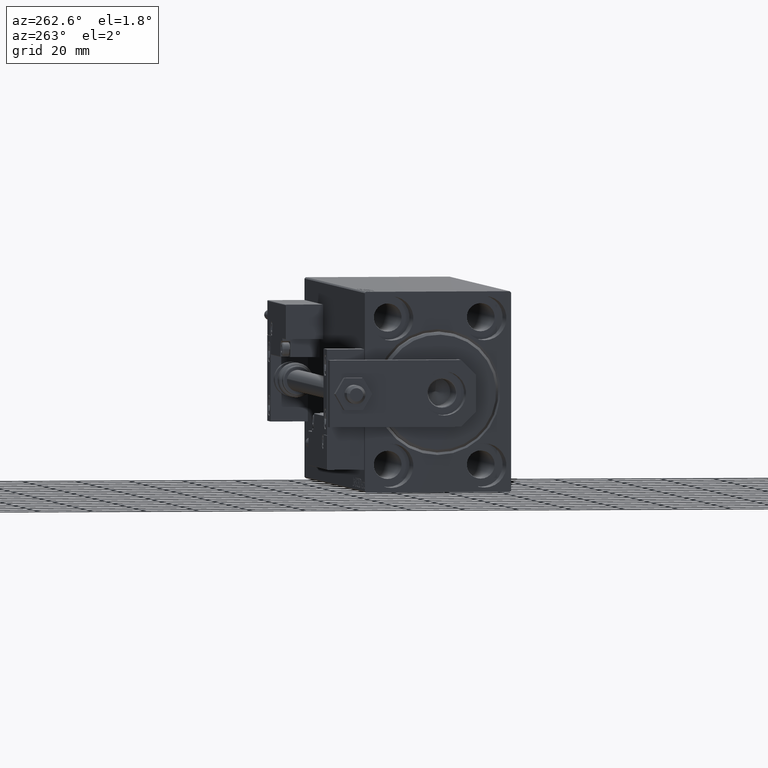
[diagram: clean part render]
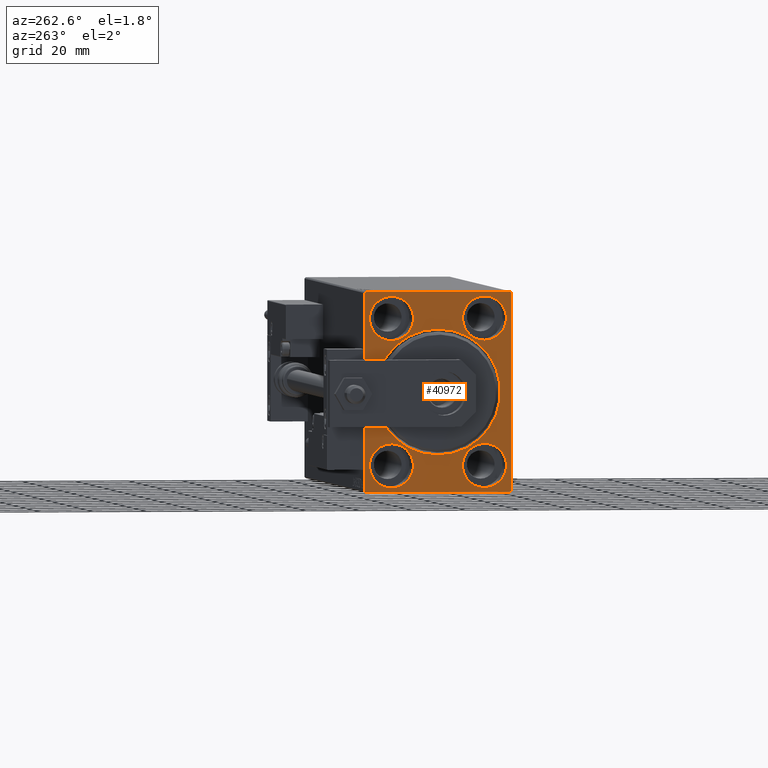
[diagram: same view with one face highlighted and labeled with its STEP entity id]
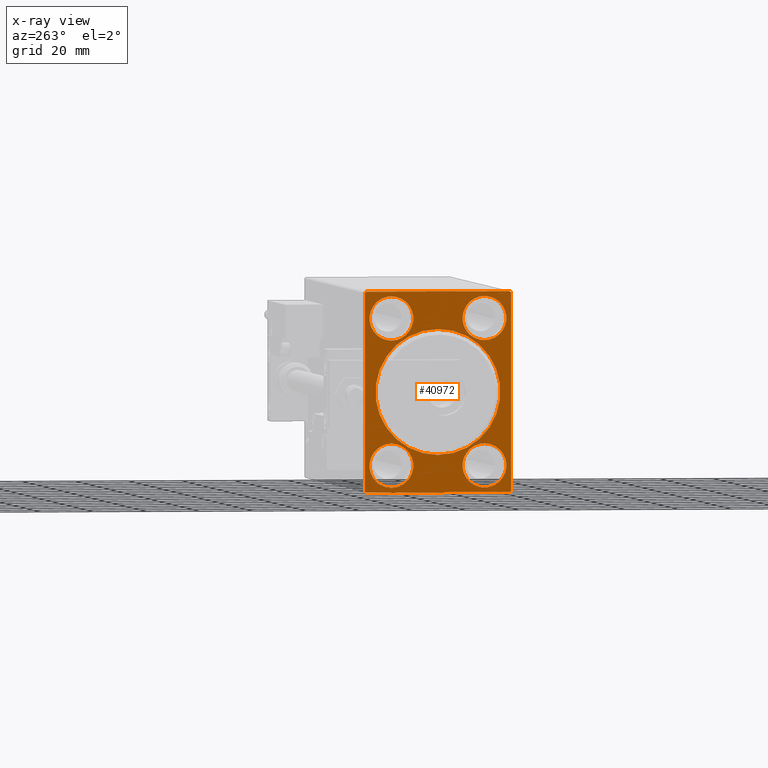
[diagram: x-ray of the same camera — body ghosted, the highlighted face saturated]
A machine part, auxiliary view. The second image highlights one B-rep face of the part: STEP entity #40972.
The next image is the same camera in x-ray: the body ghosted, the highlighted face saturated — about 0% of this face is hidden behind the body in this view.
In plain terms, the highlighted planar face has unit normal (1, 0, 0).
Its self-contained STEP definition (entity closure, byte-faithful):
#494 = DIRECTION ( 'NONE',  ( 0.000000000000000000, 0.000000000000000000, -1.000000000000000000 ) ) ;
#666 = CARTESIAN_POINT ( 'NONE',  ( 0.000000000000000000, -26.99999999999997513, -37.50000000000000000 ) ) ;
#687 = VECTOR ( 'NONE', #46618, 1000.000000000000000 ) ;
#893 = CARTESIAN_POINT ( 'NONE',  ( 0.000000000000000000, 17.50000000000000355, 27.49999999999999645 ) ) ;
#1752 = CARTESIAN_POINT ( 'NONE',  ( 0.000000000000000000, 27.00000000000003197, -37.50000000000000000 ) ) ;
#1796 = ORIENTED_EDGE ( 'NONE', *, *, #7223, .T. ) ;
#2084 = CIRCLE ( 'NONE', #19018, 8.250000000000000000 ) ;
#2103 = EDGE_CURVE ( 'NONE', #23655, #49154, #2084, .T. ) ;
#2503 = CARTESIAN_POINT ( 'NONE',  ( 0.000000000000000000, 17.49999999999999645, -27.50000000000000355 ) ) ;
#3256 = EDGE_LOOP ( 'NONE', ( #25740, #12649 ) ) ;
#3295 = VERTEX_POINT ( 'NONE', #36533 ) ;
#3357 = ORIENTED_EDGE ( 'NONE', *, *, #44906, .F. ) ;
#3539 = CARTESIAN_POINT ( 'NONE',  ( 0.000000000000000000, -17.49999999999999645, 35.74999999999999289 ) ) ;
#3814 = CARTESIAN_POINT ( 'NONE',  ( 0.000000000000000000, 26.99999999999999645, 37.50000000000000711 ) ) ;
#4113 = DIRECTION ( 'NONE',  ( -1.000000000000000000, 0.000000000000000000, 0.000000000000000000 ) ) ;
#4230 = ORIENTED_EDGE ( 'NONE', *, *, #39633, .F. ) ;
#4268 = LINE ( 'NONE', #42158, #27358 ) ;
#4818 = DIRECTION ( 'NONE',  ( 0.000000000000000000, 0.000000000000000000, 1.000000000000000000 ) ) ;
#5851 = CARTESIAN_POINT ( 'NONE',  ( 0.000000000000000000, 27.49999999999999645, 37.00000000000001421 ) ) ;
#5901 = PLANE ( 'NONE',  #19401 ) ;
#5920 = DIRECTION ( 'NONE',  ( 0.000000000000000000, 0.000000000000000000, 1.000000000000000000 ) ) ;
#6150 = FACE_BOUND ( 'NONE', #3256, .T. ) ;
#6354 = AXIS2_PLACEMENT_3D ( 'NONE', #2503, #11054, #25473 ) ;
#7181 = CARTESIAN_POINT ( 'NONE',  ( 0.000000000000000000, 27.50000000000000355, -37.00000000000002842 ) ) ;
#7223 = EDGE_CURVE ( 'NONE', #45735, #39981, #36415, .T. ) ;
#7419 = DIRECTION ( 'NONE',  ( -1.000000000000000000, 0.000000000000000000, 0.000000000000000000 ) ) ;
#7433 = CARTESIAN_POINT ( 'NONE',  ( 0.000000000000000000, -27.00000000000000355, 37.50000000000000000 ) ) ;
#7671 = CARTESIAN_POINT ( 'NONE',  ( 0.000000000000000000, -17.49999999999999645, 19.25000000000000000 ) ) ;
#7921 = CARTESIAN_POINT ( 'NONE',  ( 0.000000000000000000, 17.50000000000000355, 27.49999999999999645 ) ) ;
#8036 = CIRCLE ( 'NONE', #12846, 8.249999999999992895 ) ;
#8080 = ORIENTED_EDGE ( 'NONE', *, *, #10622, .F. ) ;
#8100 = CIRCLE ( 'NONE', #16952, 8.249999999999992895 ) ;
#8392 = ORIENTED_EDGE ( 'NONE', *, *, #8917, .T. ) ;
#8702 = DIRECTION ( 'NONE',  ( -1.000000000000000000, 0.000000000000000000, 0.000000000000000000 ) ) ;
#8917 = EDGE_CURVE ( 'NONE', #18761, #3295, #47351, .T. ) ;
#9029 = ORIENTED_EDGE ( 'NONE', *, *, #24909, .F. ) ;
#9175 = CARTESIAN_POINT ( 'NONE',  ( 0.000000000000000000, -27.50000000000000355, -37.50000000000000000 ) ) ;
#9369 = CARTESIAN_POINT ( 'NONE',  ( 0.000000000000000000, -17.50000000000000355, -35.75000000000000711 ) ) ;
#9453 = DIRECTION ( 'NONE',  ( 0.000000000000000000, 0.000000000000000000, -1.000000000000000000 ) ) ;
#9546 = LINE ( 'NONE', #24953, #33513 ) ;
#9658 = CARTESIAN_POINT ( 'NONE',  ( 0.000000000000000000, 26.99999999999999645, 37.50000000000000711 ) ) ;
#10193 = FACE_OUTER_BOUND ( 'NONE', #32809, .T. ) ;
#10529 = CARTESIAN_POINT ( 'NONE',  ( 0.000000000000000000, -26.99999999999997513, -37.50000000000000000 ) ) ;
#10576 = DIRECTION ( 'NONE',  ( -1.000000000000000000, 0.000000000000000000, 0.000000000000000000 ) ) ;
#10622 = EDGE_CURVE ( 'NONE', #48198, #44207, #24144, .T. ) ;
#11046 = VERTEX_POINT ( 'NONE', #49709 ) ;
#11054 = DIRECTION ( 'NONE',  ( -1.000000000000000000, 0.000000000000000000, 0.000000000000000000 ) ) ;
#11274 = CARTESIAN_POINT ( 'NONE',  ( 0.000000000000000000, 2.877919977996279137E-15, -23.49999999999998934 ) ) ;
#11568 = EDGE_CURVE ( 'NONE', #35036, #44561, #8036, .T. ) ;
#11693 = DIRECTION ( 'NONE',  ( 0.000000000000000000, -0.7071067811865474617, -0.7071067811865474617 ) ) ;
#12067 = VERTEX_POINT ( 'NONE', #11274 ) ;
#12117 = CIRCLE ( 'NONE', #33110, 8.250000000000000000 ) ;
#12129 = DIRECTION ( 'NONE',  ( 1.000000000000000000, 0.000000000000000000, 0.000000000000000000 ) ) ;
#12649 = ORIENTED_EDGE ( 'NONE', *, *, #29915, .T. ) ;
#12846 = AXIS2_PLACEMENT_3D ( 'NONE', #43941, #23763, #4818 ) ;
#13203 = VECTOR ( 'NONE', #11693, 1000.000000000000114 ) ;
#14123 = VERTEX_POINT ( 'NONE', #38228 ) ;
#14450 = EDGE_CURVE ( 'NONE', #45735, #3295, #4268, .T. ) ;
#14455 = CARTESIAN_POINT ( 'NONE',  ( 0.000000000000000000, 17.50000000000000355, 19.25000000000000000 ) ) ;
#14612 = CARTESIAN_POINT ( 'NONE',  ( 0.000000000000000000, -17.50000000000000355, -27.50000000000000355 ) ) ;
#14785 = DIRECTION ( 'NONE',  ( 0.000000000000000000, 0.000000000000000000, -1.000000000000000000 ) ) ;
#14919 = ORIENTED_EDGE ( 'NONE', *, *, #40834, .F. ) ;
#15172 = CARTESIAN_POINT ( 'NONE',  ( 0.000000000000000000, 0.000000000000000000, 0.000000000000000000 ) ) ;
#15862 = EDGE_CURVE ( 'NONE', #49154, #23655, #45128, .T. ) ;
#16273 = DIRECTION ( 'NONE',  ( 0.000000000000000000, 0.000000000000000000, 1.000000000000000000 ) ) ;
#16282 = DIRECTION ( 'NONE',  ( 0.000000000000000000, 0.000000000000000000, 1.000000000000000000 ) ) ;
#16510 = CARTESIAN_POINT ( 'NONE',  ( 0.000000000000000000, -17.50000000000000355, -27.50000000000000355 ) ) ;
#16952 = AXIS2_PLACEMENT_3D ( 'NONE', #893, #8702, #16282 ) ;
#17802 = ORIENTED_EDGE ( 'NONE', *, *, #37361, .F. ) ;
#17914 = DIRECTION ( 'NONE',  ( 0.000000000000000000, 0.000000000000000000, 1.000000000000000000 ) ) ;
#18761 = VERTEX_POINT ( 'NONE', #10529 ) ;
#19018 = AXIS2_PLACEMENT_3D ( 'NONE', #14612, #10576, #17914 ) ;
#19338 = ORIENTED_EDGE ( 'NONE', *, *, #41249, .F. ) ;
#19401 = AXIS2_PLACEMENT_3D ( 'NONE', #25345, #40997, #9453 ) ;
#19999 = CARTESIAN_POINT ( 'NONE',  ( 0.000000000000000000, 17.49999999999999645, -35.75000000000000711 ) ) ;
#21060 = AXIS2_PLACEMENT_3D ( 'NONE', #15172, #12129, #45737 ) ;
#21682 = LINE ( 'NONE', #44917, #38863 ) ;
#21821 = EDGE_LOOP ( 'NONE', ( #47530, #33814 ) ) ;
#22014 = DIRECTION ( 'NONE',  ( -0.000000000000000000, 0.7071067811865474617, 0.7071067811865474617 ) ) ;
#22051 = CARTESIAN_POINT ( 'NONE',  ( 0.000000000000000000, 17.50000000000000355, 35.74999999999999289 ) ) ;
#22084 = VECTOR ( 'NONE', #25061, 1000.000000000000000 ) ;
#23178 = CARTESIAN_POINT ( 'NONE',  ( 0.000000000000000000, -27.50000000000000355, 37.00000000000000000 ) ) ;
#23353 = AXIS2_PLACEMENT_3D ( 'NONE', #16510, #28138, #16273 ) ;
#23655 = VERTEX_POINT ( 'NONE', #48081 ) ;
#23763 = DIRECTION ( 'NONE',  ( -1.000000000000000000, 0.000000000000000000, 0.000000000000000000 ) ) ;
#24144 = CIRCLE ( 'NONE', #42716, 8.249999999999992895 ) ;
#24856 = FACE_BOUND ( 'NONE', #48952, .T. ) ;
#24909 = EDGE_CURVE ( 'NONE', #14123, #43088, #9546, .T. ) ;
#24953 = CARTESIAN_POINT ( 'NONE',  ( 0.000000000000000000, 27.50000000000000355, -37.50000000000000000 ) ) ;
#25061 = DIRECTION ( 'NONE',  ( -0.000000000000000000, 0.7071067811865524577, -0.7071067811865426878 ) ) ;
#25323 = LINE ( 'NONE', #9175, #30635 ) ;
#25345 = CARTESIAN_POINT ( 'NONE',  ( 0.000000000000000000, 0.000000000000000000, 0.000000000000000000 ) ) ;
#25473 = DIRECTION ( 'NONE',  ( 0.000000000000000000, 0.000000000000000000, 1.000000000000000000 ) ) ;
#25599 = FACE_BOUND ( 'NONE', #42995, .T. ) ;
#25665 = CARTESIAN_POINT ( 'NONE',  ( 0.000000000000000000, 0.000000000000000000, 0.000000000000000000 ) ) ;
#25702 = ORIENTED_EDGE ( 'NONE', *, *, #46681, .T. ) ;
#25740 = ORIENTED_EDGE ( 'NONE', *, *, #43333, .T. ) ;
#27358 = VECTOR ( 'NONE', #494, 1000.000000000000000 ) ;
#27371 = DIRECTION ( 'NONE',  ( 0.000000000000000000, 0.000000000000000000, 1.000000000000000000 ) ) ;
#28138 = DIRECTION ( 'NONE',  ( -1.000000000000000000, 0.000000000000000000, 0.000000000000000000 ) ) ;
#28831 = ORIENTED_EDGE ( 'NONE', *, *, #2103, .F. ) ;
#29915 = EDGE_CURVE ( 'NONE', #12067, #47463, #31238, .T. ) ;
#30635 = VECTOR ( 'NONE', #39973, 1000.000000000000000 ) ;
#31238 = CIRCLE ( 'NONE', #41728, 23.49999999999998934 ) ;
#32809 = EDGE_LOOP ( 'NONE', ( #35824, #1796, #3357, #25702, #9029, #44317, #4230, #8392 ) ) ;
#33012 = AXIS2_PLACEMENT_3D ( 'NONE', #44320, #33199, #5920 ) ;
#33110 = AXIS2_PLACEMENT_3D ( 'NONE', #38708, #4113, #46537 ) ;
#33118 = VERTEX_POINT ( 'NONE', #3814 ) ;
#33199 = DIRECTION ( 'NONE',  ( -1.000000000000000000, 0.000000000000000000, 0.000000000000000000 ) ) ;
#33272 = CARTESIAN_POINT ( 'NONE',  ( 0.000000000000000000, 0.000000000000000000, 23.49999999999998934 ) ) ;
#33513 = VECTOR ( 'NONE', #38670, 1000.000000000000000 ) ;
#33814 = ORIENTED_EDGE ( 'NONE', *, *, #11568, .F. ) ;
#33994 = DIRECTION ( 'NONE',  ( 1.000000000000000000, 0.000000000000000000, 0.000000000000000000 ) ) ;
#34081 = EDGE_CURVE ( 'NONE', #44561, #35036, #45123, .T. ) ;
#34482 = VECTOR ( 'NONE', #22014, 1000.000000000000114 ) ;
#35036 = VERTEX_POINT ( 'NONE', #7671 ) ;
#35824 = ORIENTED_EDGE ( 'NONE', *, *, #14450, .F. ) ;
#36377 = CIRCLE ( 'NONE', #21060, 23.49999999999998934 ) ;
#36413 = LINE ( 'NONE', #9658, #22084 ) ;
#36415 = LINE ( 'NONE', #45250, #34482 ) ;
#36533 = CARTESIAN_POINT ( 'NONE',  ( 0.000000000000000000, -27.50000000000000355, -37.00000000000000000 ) ) ;
#36697 = ORIENTED_EDGE ( 'NONE', *, *, #15862, .F. ) ;
#37361 = EDGE_CURVE ( 'NONE', #44334, #11046, #49894, .T. ) ;
#37971 = EDGE_LOOP ( 'NONE', ( #14919, #8080 ) ) ;
#38228 = CARTESIAN_POINT ( 'NONE',  ( 0.000000000000000000, 27.50000000000000355, -37.00000000000002842 ) ) ;
#38670 = DIRECTION ( 'NONE',  ( 0.000000000000000000, -9.251858538542970348E-17, 1.000000000000000000 ) ) ;
#38708 = CARTESIAN_POINT ( 'NONE',  ( 0.000000000000000000, 17.49999999999999645, -27.50000000000000355 ) ) ;
#38863 = VECTOR ( 'NONE', #41129, 1000.000000000000000 ) ;
#39633 = EDGE_CURVE ( 'NONE', #18761, #40348, #25323, .T. ) ;
#39973 = DIRECTION ( 'NONE',  ( 0.000000000000000000, 1.000000000000000000, 0.000000000000000000 ) ) ;
#39981 = VERTEX_POINT ( 'NONE', #7433 ) ;
#40255 = FACE_BOUND ( 'NONE', #21821, .T. ) ;
#40348 = VERTEX_POINT ( 'NONE', #1752 ) ;
#40834 = EDGE_CURVE ( 'NONE', #44207, #48198, #8100, .T. ) ;
#40972 = ADVANCED_FACE ( 'NONE', ( #6150, #25599, #40255, #44788, #24856, #10193 ), #5901, .F. ) ;
#40997 = DIRECTION ( 'NONE',  ( 1.000000000000000000, 0.000000000000000000, 0.000000000000000000 ) ) ;
#41129 = DIRECTION ( 'NONE',  ( 0.000000000000000000, -1.000000000000000000, -1.261617073437677999E-16 ) ) ;
#41249 = EDGE_CURVE ( 'NONE', #11046, #44334, #12117, .T. ) ;
#41728 = AXIS2_PLACEMENT_3D ( 'NONE', #25665, #33994, #14785 ) ;
#42158 = CARTESIAN_POINT ( 'NONE',  ( 0.000000000000000000, -27.50000000000000355, 37.50000000000000000 ) ) ;
#42716 = AXIS2_PLACEMENT_3D ( 'NONE', #7921, #7419, #27371 ) ;
#42995 = EDGE_LOOP ( 'NONE', ( #19338, #17802 ) ) ;
#43088 = VERTEX_POINT ( 'NONE', #5851 ) ;
#43333 = EDGE_CURVE ( 'NONE', #47463, #12067, #36377, .T. ) ;
#43941 = CARTESIAN_POINT ( 'NONE',  ( 0.000000000000000000, -17.49999999999999645, 27.49999999999999645 ) ) ;
#44207 = VERTEX_POINT ( 'NONE', #22051 ) ;
#44317 = ORIENTED_EDGE ( 'NONE', *, *, #46952, .T. ) ;
#44320 = CARTESIAN_POINT ( 'NONE',  ( 0.000000000000000000, -17.49999999999999645, 27.49999999999999645 ) ) ;
#44334 = VERTEX_POINT ( 'NONE', #19999 ) ;
#44561 = VERTEX_POINT ( 'NONE', #3539 ) ;
#44788 = FACE_BOUND ( 'NONE', #37971, .T. ) ;
#44906 = EDGE_CURVE ( 'NONE', #33118, #39981, #21682, .T. ) ;
#44917 = CARTESIAN_POINT ( 'NONE',  ( 0.000000000000000000, 27.49999999999999645, 37.50000000000000711 ) ) ;
#45123 = CIRCLE ( 'NONE', #33012, 8.249999999999992895 ) ;
#45128 = CIRCLE ( 'NONE', #23353, 8.250000000000000000 ) ;
#45250 = CARTESIAN_POINT ( 'NONE',  ( 0.000000000000000000, -27.50000000000000355, 37.00000000000000000 ) ) ;
#45735 = VERTEX_POINT ( 'NONE', #23178 ) ;
#45737 = DIRECTION ( 'NONE',  ( 0.000000000000000000, 0.000000000000000000, -1.000000000000000000 ) ) ;
#46296 = LINE ( 'NONE', #7181, #13203 ) ;
#46537 = DIRECTION ( 'NONE',  ( 0.000000000000000000, 0.000000000000000000, 1.000000000000000000 ) ) ;
#46618 = DIRECTION ( 'NONE',  ( -0.000000000000000000, -0.7071067811865672237, 0.7071067811865279218 ) ) ;
#46681 = EDGE_CURVE ( 'NONE', #33118, #43088, #36413, .T. ) ;
#46952 = EDGE_CURVE ( 'NONE', #14123, #40348, #46296, .T. ) ;
#47351 = LINE ( 'NONE', #666, #687 ) ;
#47463 = VERTEX_POINT ( 'NONE', #33272 ) ;
#47530 = ORIENTED_EDGE ( 'NONE', *, *, #34081, .F. ) ;
#48081 = CARTESIAN_POINT ( 'NONE',  ( 0.000000000000000000, -17.50000000000000355, -19.25000000000000355 ) ) ;
#48198 = VERTEX_POINT ( 'NONE', #14455 ) ;
#48952 = EDGE_LOOP ( 'NONE', ( #28831, #36697 ) ) ;
#49154 = VERTEX_POINT ( 'NONE', #9369 ) ;
#49709 = CARTESIAN_POINT ( 'NONE',  ( 0.000000000000000000, 17.49999999999999645, -19.25000000000000355 ) ) ;
#49894 = CIRCLE ( 'NONE', #6354, 8.250000000000000000 ) ;